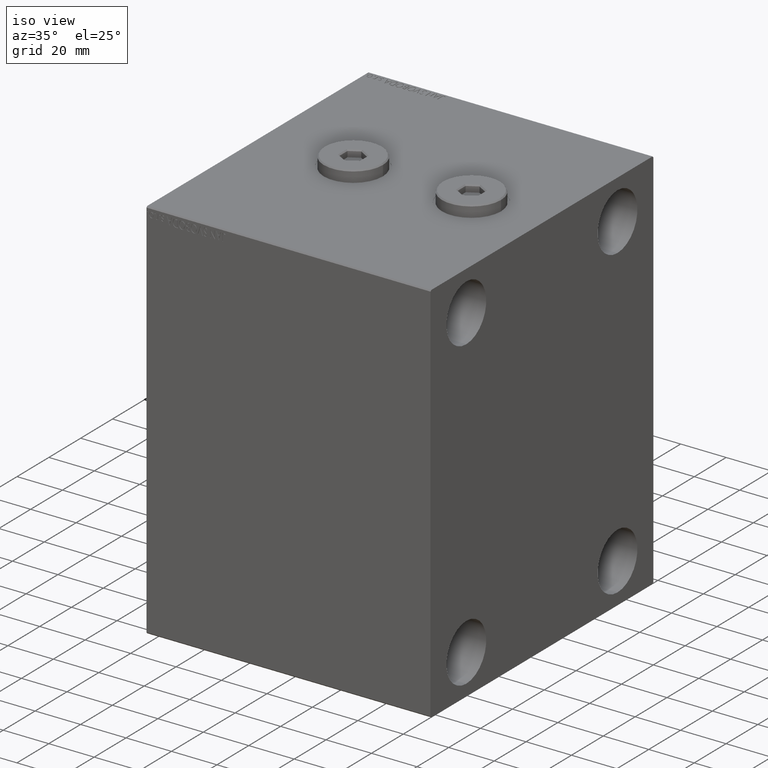
[diagram: clean part render]
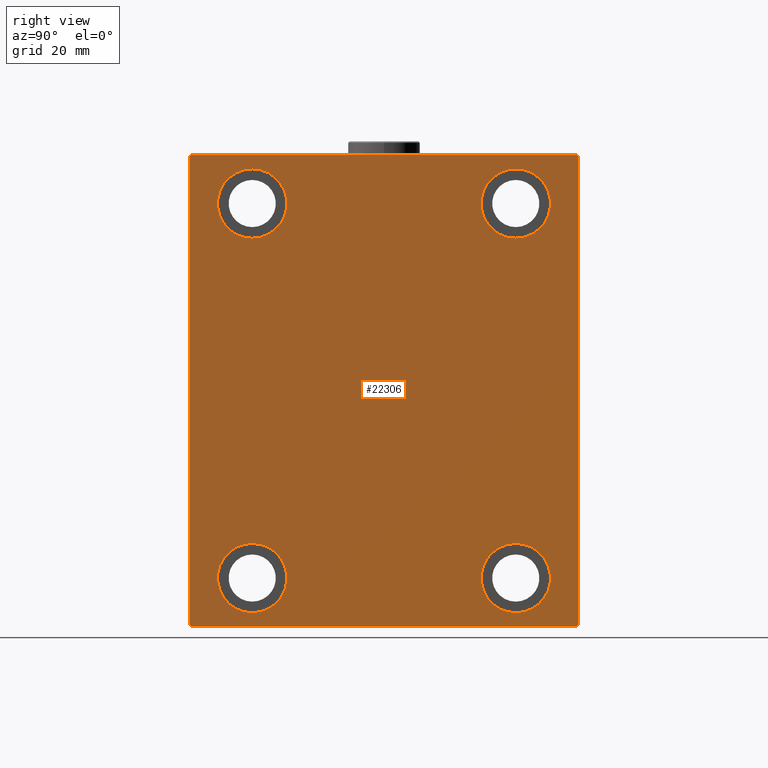
[diagram: tour spotlight — one face highlighted and labeled with its STEP entity id]
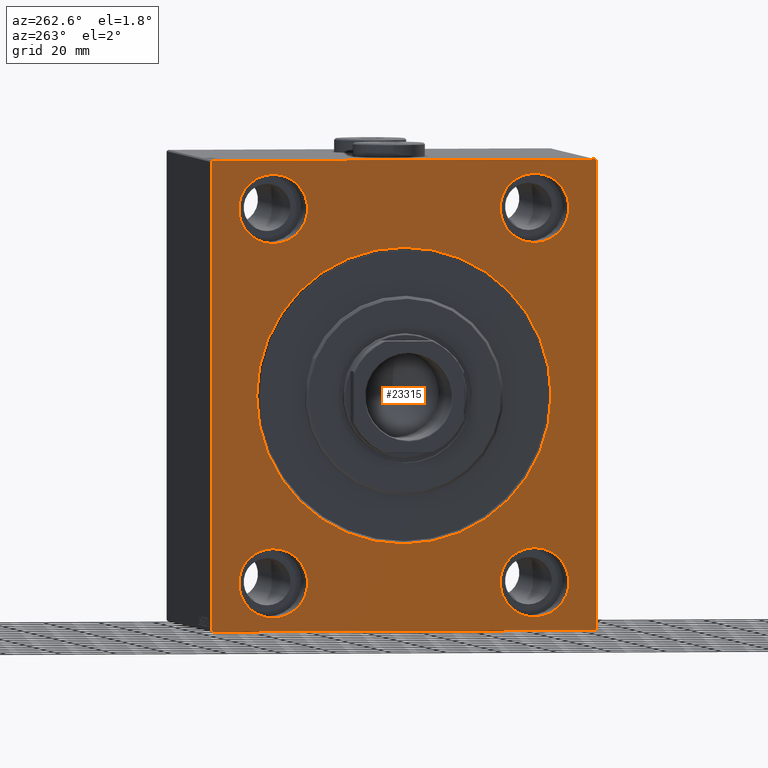
[diagram: tour spotlight — one face highlighted and labeled with its STEP entity id]
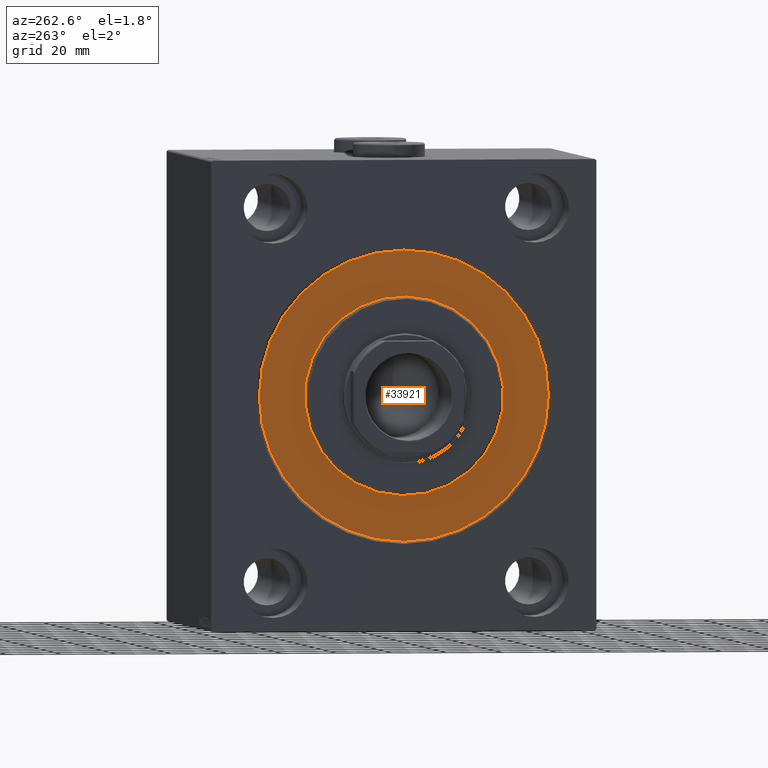
[diagram: tour spotlight — one face highlighted and labeled with its STEP entity id]
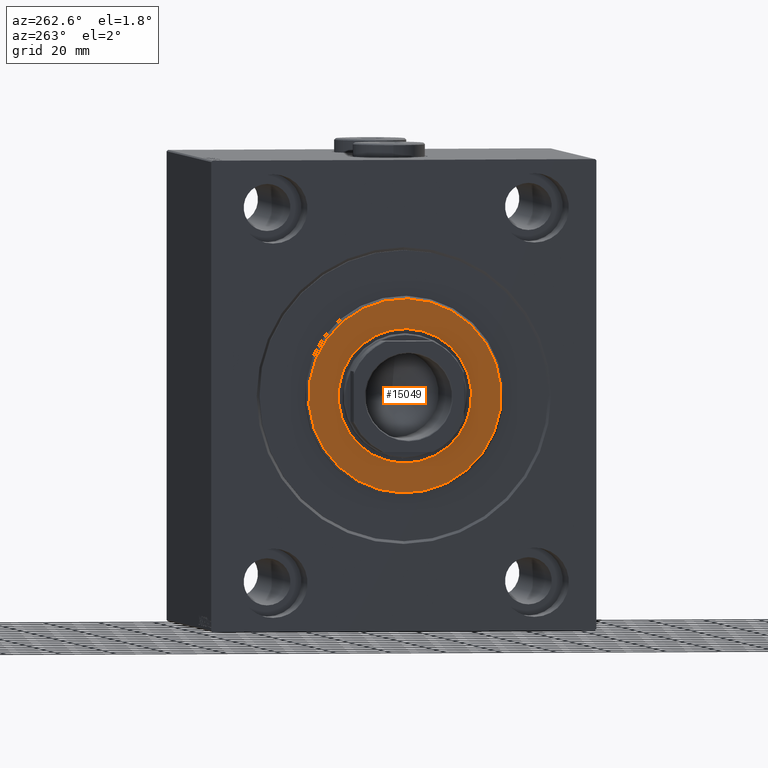
[diagram: tour spotlight — one face highlighted and labeled with its STEP entity id]
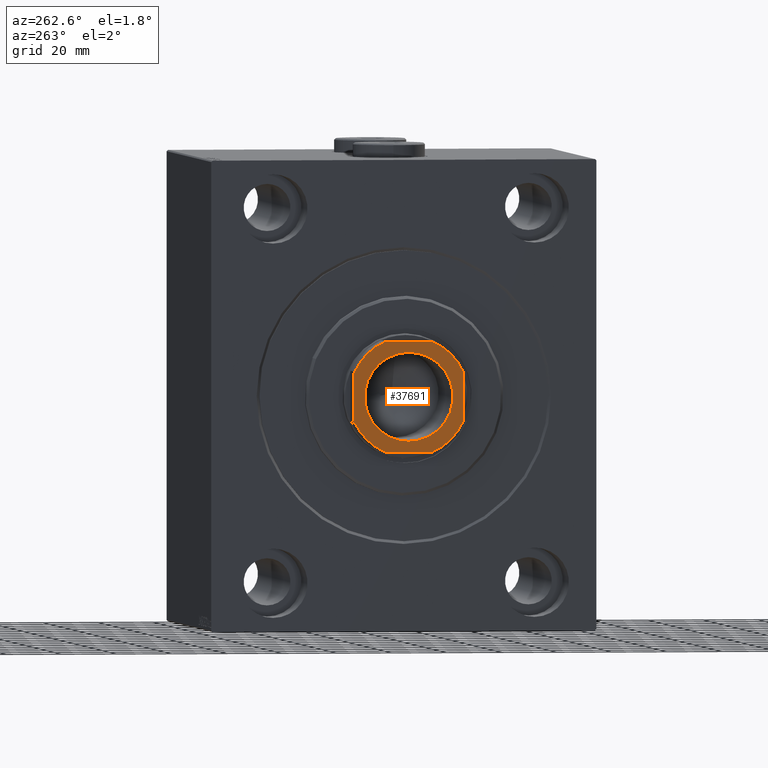
[diagram: tour spotlight — one face highlighted and labeled with its STEP entity id]
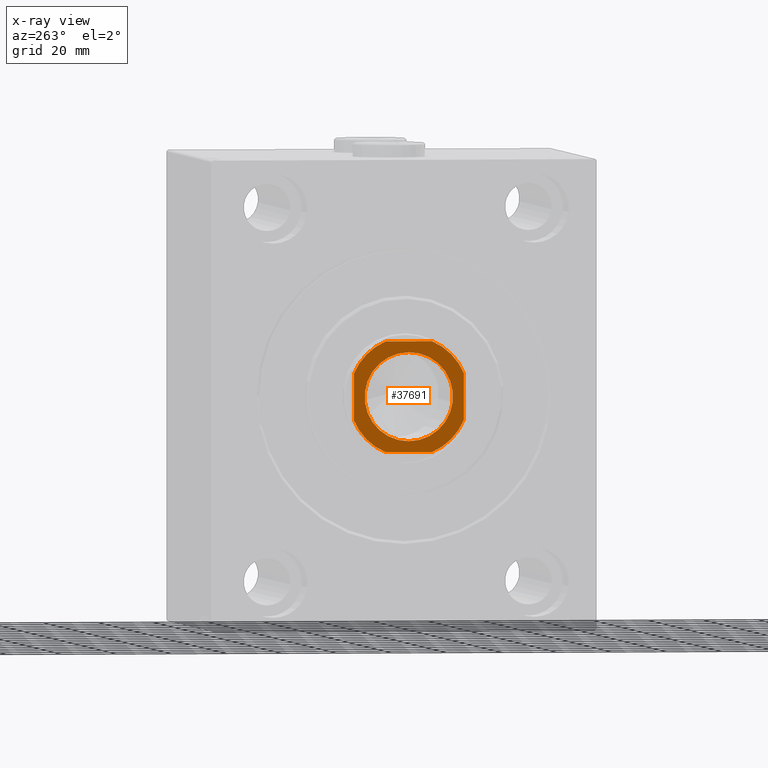
[diagram: x-ray of the same camera — body ghosted, this tour face saturated]
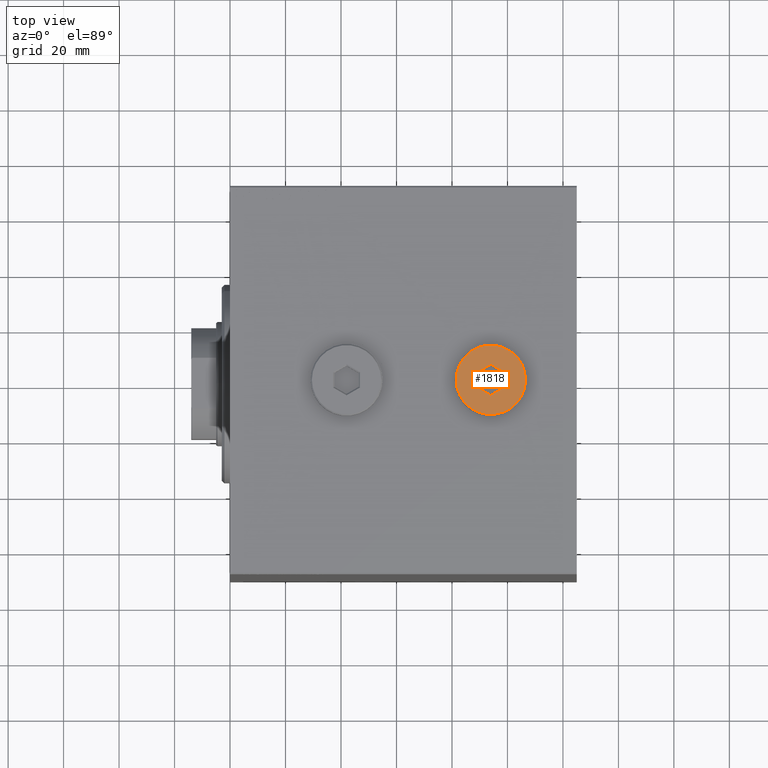
[diagram: tour spotlight — one face highlighted and labeled with its STEP entity id]
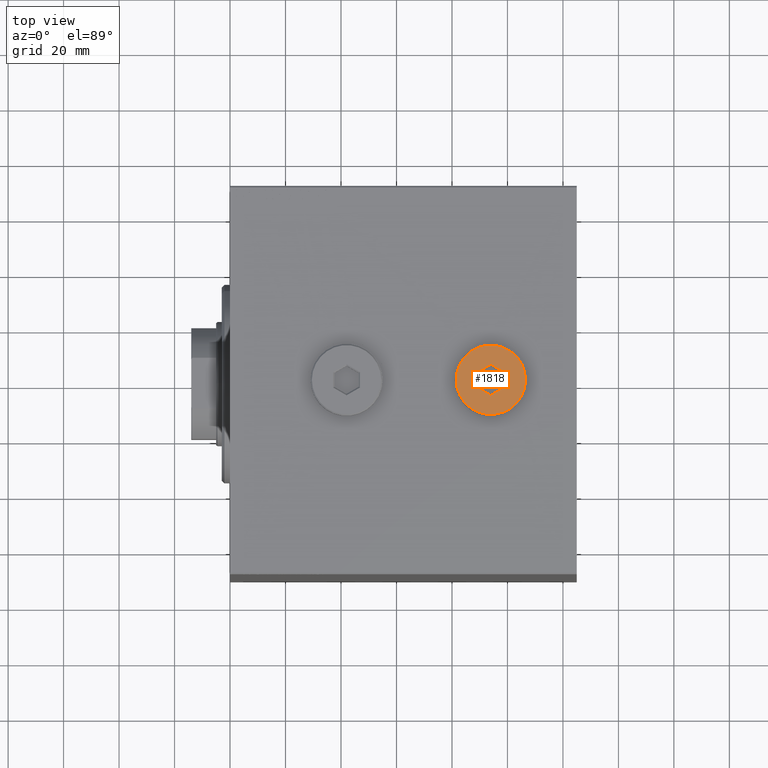
[diagram: tour spotlight — one face highlighted and labeled with its STEP entity id]
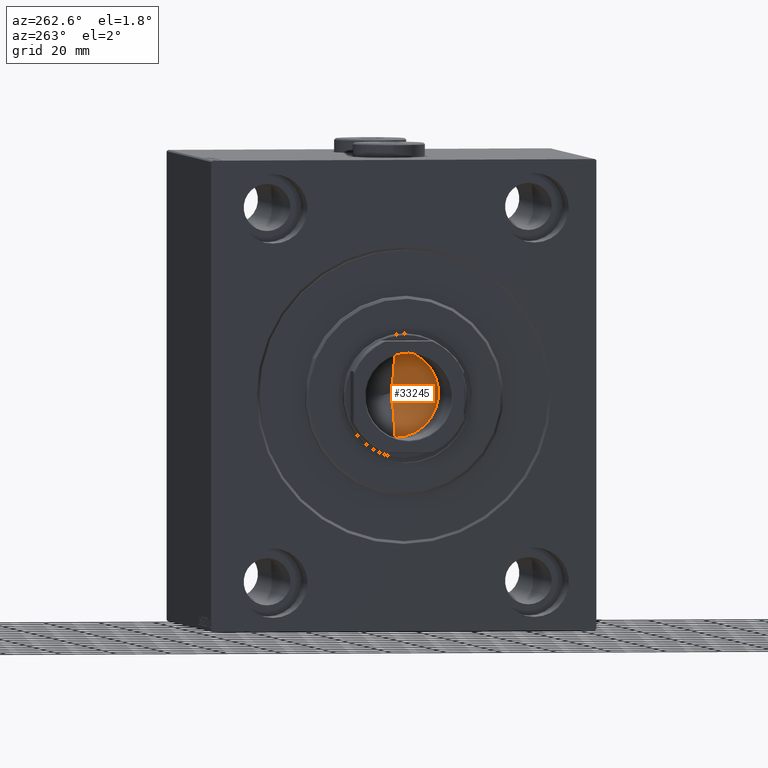
[diagram: tour spotlight — one face highlighted and labeled with its STEP entity id]
A machine part: a face-by-face anatomy tour. The part has 917 B-rep faces; the first image is the clean iso view, then the 8 largest visible faces are spotlighted one at a time (largest first), each with its STEP entity span.

Face 1 — right view, entity #22306. In plain terms, the highlighted planar face has unit normal (1, 0, 0).
Definition (entity closure, byte-faithful):
#208 = CARTESIAN_POINT ( 'NONE',  ( 125.0000000000000000, 47.50000000000000711, -67.50000000000000000 ) ) ;
#240 = CARTESIAN_POINT ( 'NONE',  ( 125.0000000000000000, -47.49999999999999289, -67.50000000000000000 ) ) ;
#627 = DIRECTION ( 'NONE',  ( 0.000000000000000000, 0.000000000000000000, 1.000000000000000000 ) ) ;
#775 = ORIENTED_EDGE ( 'NONE', *, *, #10256, .T. ) ;
#801 = CARTESIAN_POINT ( 'NONE',  ( 125.0000000000000000, -47.49999999999997868, 55.00000000000000000 ) ) ;
#1208 = DIRECTION ( 'NONE',  ( 0.000000000000000000, 0.000000000000000000, 1.000000000000000000 ) ) ;
#1876 = VERTEX_POINT ( 'NONE', #2485 ) ;
#2126 = AXIS2_PLACEMENT_3D ( 'NONE', #29036, #11937, #1208 ) ;
#2485 = CARTESIAN_POINT ( 'NONE',  ( 125.0000000000000000, -47.49999999999999289, -55.00000000000000711 ) ) ;
#3408 = VERTEX_POINT ( 'NONE', #36102 ) ;
#3709 = DIRECTION ( 'NONE',  ( 0.000000000000000000, -1.000000000000000000, -9.912705577010325549E-17 ) ) ;
#3798 = VECTOR ( 'NONE', #24924, 1000.000000000000000 ) ;
#4574 = FACE_OUTER_BOUND ( 'NONE', #31026, .T. ) ;
#4967 = ORIENTED_EDGE ( 'NONE', *, *, #12283, .T. ) ;
#5433 = CARTESIAN_POINT ( 'NONE',  ( 125.0000000000000000, 47.50000000000000711, 80.00000000000001421 ) ) ;
#5727 = VERTEX_POINT ( 'NONE', #21836 ) ;
#6416 = VECTOR ( 'NONE', #18000, 1000.000000000000000 ) ;
#6594 = LINE ( 'NONE', #23029, #38563 ) ;
#7360 = CIRCLE ( 'NONE', #27735, 12.49999999999999645 ) ;
#8004 = FACE_BOUND ( 'NONE', #23435, .T. ) ;
#8083 = DIRECTION ( 'NONE',  ( -1.000000000000000000, -0.000000000000000000, -0.000000000000000000 ) ) ;
#8097 = EDGE_CURVE ( 'NONE', #42112, #41736, #39394, .T. ) ;
#8326 = VECTOR ( 'NONE', #3709, 1000.000000000000000 ) ;
#8463 = EDGE_CURVE ( 'NONE', #1876, #33055, #7360, .T. ) ;
#8594 = EDGE_LOOP ( 'NONE', ( #4967, #13448 ) ) ;
#8704 = DIRECTION ( 'NONE',  ( 0.000000000000000000, 0.000000000000000000, 1.000000000000000000 ) ) ;
#8717 = EDGE_CURVE ( 'NONE', #30640, #43661, #27407, .T. ) ;
#9018 = CIRCLE ( 'NONE', #43270, 12.49999999999999645 ) ;
#9191 = ORIENTED_EDGE ( 'NONE', *, *, #8717, .T. ) ;
#9458 = CARTESIAN_POINT ( 'NONE',  ( 125.0000000000000000, 47.50000000000000711, -80.00000000000000000 ) ) ;
#9479 = ORIENTED_EDGE ( 'NONE', *, *, #9575, .T. ) ;
#9575 = EDGE_CURVE ( 'NONE', #33055, #1876, #42026, .T. ) ;
#10256 = EDGE_CURVE ( 'NONE', #20692, #11074, #16581, .T. ) ;
#10761 = AXIS2_PLACEMENT_3D ( 'NONE', #42142, #18190, #627 ) ;
#10988 = AXIS2_PLACEMENT_3D ( 'NONE', #20465, #41445, #23444 ) ;
#11074 = VERTEX_POINT ( 'NONE', #12721 ) ;
#11328 = ORIENTED_EDGE ( 'NONE', *, *, #8097, .T. ) ;
#11747 = DIRECTION ( 'NONE',  ( 0.000000000000000000, 0.000000000000000000, 1.000000000000000000 ) ) ;
#11937 = DIRECTION ( 'NONE',  ( -1.000000000000000000, -0.000000000000000000, -0.000000000000000000 ) ) ;
#12053 = CARTESIAN_POINT ( 'NONE',  ( 125.0000000000000000, -47.49999999999999289, -80.00000000000000000 ) ) ;
#12283 = EDGE_CURVE ( 'NONE', #42624, #22890, #41362, .T. ) ;
#12377 = CARTESIAN_POINT ( 'NONE',  ( 125.0000000000000000, -77.24999999999901945, -77.25000000000116529 ) ) ;
#12683 = AXIS2_PLACEMENT_3D ( 'NONE', #14869, #18531, #8704 ) ;
#12721 = CARTESIAN_POINT ( 'NONE',  ( 125.0000000000000000, 69.50000000000001421, -85.00000000000001421 ) ) ;
#13448 = ORIENTED_EDGE ( 'NONE', *, *, #35859, .T. ) ;
#13894 = DIRECTION ( 'NONE',  ( -1.000000000000000000, -0.000000000000000000, -0.000000000000000000 ) ) ;
#14071 = ORIENTED_EDGE ( 'NONE', *, *, #15757, .T. ) ;
#14139 = DIRECTION ( 'NONE',  ( 0.000000000000000000, 0.000000000000000000, 1.000000000000000000 ) ) ;
#14239 = CARTESIAN_POINT ( 'NONE',  ( 125.0000000000000000, -47.49999999999997868, 80.00000000000001421 ) ) ;
#14512 = ORIENTED_EDGE ( 'NONE', *, *, #43288, .T. ) ;
#14790 = CARTESIAN_POINT ( 'NONE',  ( 125.0000000000000000, 70.00000000000002842, -85.00000000000001421 ) ) ;
#14850 = FACE_BOUND ( 'NONE', #44554, .T. ) ;
#14869 = CARTESIAN_POINT ( 'NONE',  ( 125.0000000000000000, 47.50000000000000711, 67.50000000000000000 ) ) ;
#15072 = FACE_BOUND ( 'NONE', #8594, .T. ) ;
#15355 = VERTEX_POINT ( 'NONE', #9458 ) ;
#15757 = EDGE_CURVE ( 'NONE', #11074, #18298, #6594, .T. ) ;
#16406 = EDGE_CURVE ( 'NONE', #15355, #25277, #17437, .T. ) ;
#16581 = LINE ( 'NONE', #40973, #40581 ) ;
#17424 = ORIENTED_EDGE ( 'NONE', *, *, #19137, .T. ) ;
#17437 = CIRCLE ( 'NONE', #2126, 12.49999999999999645 ) ;
#17611 = PLANE ( 'NONE',  #20627 ) ;
#17658 = DIRECTION ( 'NONE',  ( -1.000000000000000000, -0.000000000000000000, -0.000000000000000000 ) ) ;
#17977 = CIRCLE ( 'NONE', #33265, 12.50000000000001066 ) ;
#18000 = DIRECTION ( 'NONE',  ( 0.000000000000000000, -8.163404592832031500E-17, 1.000000000000000000 ) ) ;
#18146 = CARTESIAN_POINT ( 'NONE',  ( 125.0000000000000000, -47.49999999999997868, 67.50000000000000000 ) ) ;
#18190 = DIRECTION ( 'NONE',  ( -1.000000000000000000, -0.000000000000000000, -0.000000000000000000 ) ) ;
#18298 = VERTEX_POINT ( 'NONE', #24028 ) ;
#18322 = DIRECTION ( 'NONE',  ( -0.000000000000000000, 0.7071067811865574537, -0.7071067811865376918 ) ) ;
#18531 = DIRECTION ( 'NONE',  ( -1.000000000000000000, -0.000000000000000000, -0.000000000000000000 ) ) ;
#19137 = EDGE_CURVE ( 'NONE', #5727, #3408, #41199, .T. ) ;
#20015 = ORIENTED_EDGE ( 'NONE', *, *, #25298, .T. ) ;
#20465 = CARTESIAN_POINT ( 'NONE',  ( 125.0000000000000000, 47.50000000000000711, 67.50000000000000000 ) ) ;
#20516 = DIRECTION ( 'NONE',  ( -0.000000000000000000, 0.7071067811865769936, 0.7071067811865181518 ) ) ;
#20627 = AXIS2_PLACEMENT_3D ( 'NONE', #28989, #42909, #28082 ) ;
#20692 = VERTEX_POINT ( 'NONE', #32817 ) ;
#20889 = VECTOR ( 'NONE', #23106, 1000.000000000000000 ) ;
#20974 = ORIENTED_EDGE ( 'NONE', *, *, #39547, .T. ) ;
#21836 = CARTESIAN_POINT ( 'NONE',  ( 125.0000000000000000, -69.99999999999998579, 84.49999999999995737 ) ) ;
#21983 = EDGE_LOOP ( 'NONE', ( #9479, #27965 ) ) ;
#22306 = ADVANCED_FACE ( 'NONE', ( #8004, #15072, #14850, #34946, #4574 ), #17611, .T. ) ;
#22890 = VERTEX_POINT ( 'NONE', #14239 ) ;
#23029 = CARTESIAN_POINT ( 'NONE',  ( 125.0000000000000000, 77.24999999999714362, -77.25000000000356692 ) ) ;
#23106 = DIRECTION ( 'NONE',  ( -0.000000000000000000, -0.7071067811865378028, 0.7071067811865573427 ) ) ;
#23435 = EDGE_LOOP ( 'NONE', ( #33192, #44506 ) ) ;
#23444 = DIRECTION ( 'NONE',  ( 0.000000000000000000, 0.000000000000000000, 1.000000000000000000 ) ) ;
#23753 = DIRECTION ( 'NONE',  ( -1.000000000000000000, -0.000000000000000000, -0.000000000000000000 ) ) ;
#24028 = CARTESIAN_POINT ( 'NONE',  ( 125.0000000000000000, 70.00000000000002842, -84.50000000000004263 ) ) ;
#24121 = EDGE_CURVE ( 'NONE', #41736, #42112, #40343, .T. ) ;
#24924 = DIRECTION ( 'NONE',  ( 0.000000000000000000, 0.000000000000000000, -1.000000000000000000 ) ) ;
#25277 = VERTEX_POINT ( 'NONE', #26549 ) ;
#25298 = EDGE_CURVE ( 'NONE', #43661, #30183, #34525, .T. ) ;
#26073 = VECTOR ( 'NONE', #28055, 1000.000000000000114 ) ;
#26549 = CARTESIAN_POINT ( 'NONE',  ( 125.0000000000000000, 47.50000000000000711, -55.00000000000000711 ) ) ;
#27386 = LINE ( 'NONE', #38108, #26073 ) ;
#27407 = LINE ( 'NONE', #41331, #20889 ) ;
#27706 = EDGE_CURVE ( 'NONE', #25277, #15355, #9018, .T. ) ;
#27735 = AXIS2_PLACEMENT_3D ( 'NONE', #31116, #17658, #38638 ) ;
#27965 = ORIENTED_EDGE ( 'NONE', *, *, #8463, .T. ) ;
#28055 = DIRECTION ( 'NONE',  ( 0.000000000000000000, -0.7071067811865474617, -0.7071067811865474617 ) ) ;
#28082 = DIRECTION ( 'NONE',  ( 0.000000000000000000, 0.000000000000000000, -1.000000000000000000 ) ) ;
#28110 = CARTESIAN_POINT ( 'NONE',  ( 125.0000000000000000, 70.00000000000001421, 85.00000000000000000 ) ) ;
#28989 = CARTESIAN_POINT ( 'NONE',  ( 125.0000000000000000, 0.000000000000000000, 0.000000000000000000 ) ) ;
#29036 = CARTESIAN_POINT ( 'NONE',  ( 125.0000000000000000, 47.50000000000000711, -67.50000000000000000 ) ) ;
#30183 = VERTEX_POINT ( 'NONE', #34537 ) ;
#30640 = VERTEX_POINT ( 'NONE', #40924 ) ;
#31015 = DIRECTION ( 'NONE',  ( 0.000000000000000000, 0.000000000000000000, 1.000000000000000000 ) ) ;
#31026 = EDGE_LOOP ( 'NONE', ( #20015, #14512, #17424, #32678, #775, #14071, #20974, #9191 ) ) ;
#31116 = CARTESIAN_POINT ( 'NONE',  ( 125.0000000000000000, -47.49999999999999289, -67.50000000000000000 ) ) ;
#31460 = LINE ( 'NONE', #14790, #6416 ) ;
#32678 = ORIENTED_EDGE ( 'NONE', *, *, #44071, .T. ) ;
#32817 = CARTESIAN_POINT ( 'NONE',  ( 125.0000000000000000, -69.49999999999994316, -85.00000000000002842 ) ) ;
#33055 = VERTEX_POINT ( 'NONE', #12053 ) ;
#33192 = ORIENTED_EDGE ( 'NONE', *, *, #16406, .T. ) ;
#33265 = AXIS2_PLACEMENT_3D ( 'NONE', #18146, #8083, #11747 ) ;
#33284 = AXIS2_PLACEMENT_3D ( 'NONE', #240, #23753, #14139 ) ;
#33549 = ORIENTED_EDGE ( 'NONE', *, *, #24121, .T. ) ;
#34525 = LINE ( 'NONE', #28110, #8326 ) ;
#34537 = CARTESIAN_POINT ( 'NONE',  ( 125.0000000000000000, -69.49999999999997158, 84.99999999999998579 ) ) ;
#34946 = FACE_BOUND ( 'NONE', #21983, .T. ) ;
#35585 = VECTOR ( 'NONE', #18322, 999.9999999999998863 ) ;
#35859 = EDGE_CURVE ( 'NONE', #22890, #42624, #17977, .T. ) ;
#36102 = CARTESIAN_POINT ( 'NONE',  ( 125.0000000000000000, -69.99999999999998579, -84.49999999999998579 ) ) ;
#38108 = CARTESIAN_POINT ( 'NONE',  ( 125.0000000000000000, -77.24999999999997158, 77.24999999999997158 ) ) ;
#38563 = VECTOR ( 'NONE', #20516, 1000.000000000000000 ) ;
#38638 = DIRECTION ( 'NONE',  ( 0.000000000000000000, 0.000000000000000000, 1.000000000000000000 ) ) ;
#39294 = LINE ( 'NONE', #12377, #35585 ) ;
#39343 = CARTESIAN_POINT ( 'NONE',  ( 125.0000000000000000, 69.49999999999998579, 85.00000000000000000 ) ) ;
#39394 = CIRCLE ( 'NONE', #10988, 12.50000000000001066 ) ;
#39547 = EDGE_CURVE ( 'NONE', #18298, #30640, #31460, .T. ) ;
#40343 = CIRCLE ( 'NONE', #12683, 12.50000000000001066 ) ;
#40581 = VECTOR ( 'NONE', #44861, 1000.000000000000000 ) ;
#40924 = CARTESIAN_POINT ( 'NONE',  ( 125.0000000000000000, 70.00000000000001421, 84.49999999999995737 ) ) ;
#40973 = CARTESIAN_POINT ( 'NONE',  ( 125.0000000000000000, -69.99999999999998579, -85.00000000000002842 ) ) ;
#41199 = LINE ( 'NONE', #42275, #3798 ) ;
#41331 = CARTESIAN_POINT ( 'NONE',  ( 125.0000000000000000, 77.25000000000096634, 77.24999999999883471 ) ) ;
#41362 = CIRCLE ( 'NONE', #10761, 12.50000000000001066 ) ;
#41445 = DIRECTION ( 'NONE',  ( -1.000000000000000000, -0.000000000000000000, -0.000000000000000000 ) ) ;
#41736 = VERTEX_POINT ( 'NONE', #43934 ) ;
#42026 = CIRCLE ( 'NONE', #33284, 12.49999999999999645 ) ;
#42112 = VERTEX_POINT ( 'NONE', #5433 ) ;
#42142 = CARTESIAN_POINT ( 'NONE',  ( 125.0000000000000000, -47.49999999999997868, 67.50000000000000000 ) ) ;
#42275 = CARTESIAN_POINT ( 'NONE',  ( 125.0000000000000000, -69.99999999999998579, 84.99999999999998579 ) ) ;
#42624 = VERTEX_POINT ( 'NONE', #801 ) ;
#42909 = DIRECTION ( 'NONE',  ( 1.000000000000000000, 0.000000000000000000, 0.000000000000000000 ) ) ;
#43270 = AXIS2_PLACEMENT_3D ( 'NONE', #208, #13894, #31015 ) ;
#43288 = EDGE_CURVE ( 'NONE', #30183, #5727, #27386, .T. ) ;
#43661 = VERTEX_POINT ( 'NONE', #39343 ) ;
#43934 = CARTESIAN_POINT ( 'NONE',  ( 125.0000000000000000, 47.50000000000000711, 55.00000000000000000 ) ) ;
#44071 = EDGE_CURVE ( 'NONE', #3408, #20692, #39294, .T. ) ;
#44506 = ORIENTED_EDGE ( 'NONE', *, *, #27706, .T. ) ;
#44554 = EDGE_LOOP ( 'NONE', ( #33549, #11328 ) ) ;
#44861 = DIRECTION ( 'NONE',  ( 0.000000000000000000, 1.000000000000000000, 9.912705577010325549E-17 ) ) ;

Face 2 — auxiliary view, entity #23315. In plain terms, the highlighted planar face has unit normal (1, 0, 0).
Definition (entity closure, byte-faithful):
#407 = CARTESIAN_POINT ( 'NONE',  ( 0.000000000000000000, 70.00000000000002842, -84.50000000000004263 ) ) ;
#431 = DIRECTION ( 'NONE',  ( 0.000000000000000000, 1.000000000000000000, 9.912705577010325549E-17 ) ) ;
#767 = ORIENTED_EDGE ( 'NONE', *, *, #40827, .F. ) ;
#1133 = EDGE_LOOP ( 'NONE', ( #27169, #16231 ) ) ;
#1188 = DIRECTION ( 'NONE',  ( 0.000000000000000000, -0.7071067811865769936, -0.7071067811865181518 ) ) ;
#1916 = EDGE_CURVE ( 'NONE', #16418, #33824, #10953, .T. ) ;
#1952 = CARTESIAN_POINT ( 'NONE',  ( 0.000000000000000000, 0.000000000000000000, 0.000000000000000000 ) ) ;
#1971 = EDGE_CURVE ( 'NONE', #36311, #4165, #16038, .T. ) ;
#2004 = VERTEX_POINT ( 'NONE', #407 ) ;
#2674 = ORIENTED_EDGE ( 'NONE', *, *, #23047, .F. ) ;
#2853 = CARTESIAN_POINT ( 'NONE',  ( 0.000000000000000000, -47.49999999999999289, -80.00000000000000000 ) ) ;
#2854 = AXIS2_PLACEMENT_3D ( 'NONE', #32087, #38915, #18168 ) ;
#3245 = AXIS2_PLACEMENT_3D ( 'NONE', #19914, #44765, #37252 ) ;
#3967 = CARTESIAN_POINT ( 'NONE',  ( 0.000000000000000000, 47.50000000000000711, 67.50000000000000000 ) ) ;
#4089 = EDGE_LOOP ( 'NONE', ( #34548, #5238 ) ) ;
#4165 = VERTEX_POINT ( 'NONE', #14856 ) ;
#4223 = CARTESIAN_POINT ( 'NONE',  ( 0.000000000000000000, 6.551860375438343048E-15, -53.50000000000002842 ) ) ;
#4272 = AXIS2_PLACEMENT_3D ( 'NONE', #13022, #40829, #13453 ) ;
#4753 = CARTESIAN_POINT ( 'NONE',  ( 0.000000000000000000, 47.50000000000000711, 80.00000000000001421 ) ) ;
#4844 = EDGE_CURVE ( 'NONE', #25009, #16093, #40902, .T. ) ;
#5238 = ORIENTED_EDGE ( 'NONE', *, *, #16775, .F. ) ;
#5587 = VERTEX_POINT ( 'NONE', #4753 ) ;
#6445 = ORIENTED_EDGE ( 'NONE', *, *, #29777, .T. ) ;
#6558 = CARTESIAN_POINT ( 'NONE',  ( 0.000000000000000000, 70.00000000000001421, 85.00000000000000000 ) ) ;
#6635 = CARTESIAN_POINT ( 'NONE',  ( 0.000000000000000000, -47.49999999999999289, -55.00000000000000711 ) ) ;
#6673 = FACE_BOUND ( 'NONE', #40424, .T. ) ;
#6944 = DIRECTION ( 'NONE',  ( 0.000000000000000000, 0.000000000000000000, 1.000000000000000000 ) ) ;
#7488 = DIRECTION ( 'NONE',  ( 0.000000000000000000, 0.000000000000000000, -1.000000000000000000 ) ) ;
#7629 = DIRECTION ( 'NONE',  ( 0.000000000000000000, -8.163404592832031500E-17, 1.000000000000000000 ) ) ;
#7667 = VERTEX_POINT ( 'NONE', #8430 ) ;
#7899 = VECTOR ( 'NONE', #40787, 1000.000000000000000 ) ;
#7943 = EDGE_CURVE ( 'NONE', #43647, #37145, #24821, .T. ) ;
#8430 = CARTESIAN_POINT ( 'NONE',  ( 0.000000000000000000, 47.50000000000000711, 55.00000000000000000 ) ) ;
#8490 = CARTESIAN_POINT ( 'NONE',  ( 0.000000000000000000, 47.50000000000000711, -55.00000000000000711 ) ) ;
#8575 = CARTESIAN_POINT ( 'NONE',  ( 0.000000000000000000, 69.49999999999998579, 85.00000000000000000 ) ) ;
#8857 = AXIS2_PLACEMENT_3D ( 'NONE', #1952, #12469, #16106 ) ;
#9022 = AXIS2_PLACEMENT_3D ( 'NONE', #14643, #17853, #31765 ) ;
#9313 = LINE ( 'NONE', #34394, #44330 ) ;
#10203 = AXIS2_PLACEMENT_3D ( 'NONE', #41026, #40347, #23701 ) ;
#10480 = VECTOR ( 'NONE', #1188, 1000.000000000000000 ) ;
#10953 = CIRCLE ( 'NONE', #10203, 12.49999999999999645 ) ;
#11066 = LINE ( 'NONE', #34789, #38854 ) ;
#11489 = ORIENTED_EDGE ( 'NONE', *, *, #40851, .T. ) ;
#11589 = VERTEX_POINT ( 'NONE', #35433 ) ;
#11996 = ORIENTED_EDGE ( 'NONE', *, *, #4844, .T. ) ;
#12218 = VERTEX_POINT ( 'NONE', #20494 ) ;
#12469 = DIRECTION ( 'NONE',  ( 1.000000000000000000, 0.000000000000000000, 0.000000000000000000 ) ) ;
#13022 = CARTESIAN_POINT ( 'NONE',  ( 0.000000000000000000, -47.49999999999999289, -67.50000000000000000 ) ) ;
#13151 = AXIS2_PLACEMENT_3D ( 'NONE', #13646, #21615, #17972 ) ;
#13453 = DIRECTION ( 'NONE',  ( 0.000000000000000000, 0.000000000000000000, 1.000000000000000000 ) ) ;
#13551 = CARTESIAN_POINT ( 'NONE',  ( 0.000000000000000000, -47.49999999999997868, 80.00000000000001421 ) ) ;
#13646 = CARTESIAN_POINT ( 'NONE',  ( 0.000000000000000000, -47.49999999999997868, 67.50000000000000000 ) ) ;
#13673 = LINE ( 'NONE', #34220, #22860 ) ;
#14379 = AXIS2_PLACEMENT_3D ( 'NONE', #25716, #36446, #18888 ) ;
#14623 = VECTOR ( 'NONE', #7488, 1000.000000000000000 ) ;
#14643 = CARTESIAN_POINT ( 'NONE',  ( 0.000000000000000000, 0.000000000000000000, 0.000000000000000000 ) ) ;
#14856 = CARTESIAN_POINT ( 'NONE',  ( 0.000000000000000000, -47.49999999999997868, 55.00000000000000000 ) ) ;
#15314 = PLANE ( 'NONE',  #9022 ) ;
#15753 = ORIENTED_EDGE ( 'NONE', *, *, #21657, .T. ) ;
#16038 = CIRCLE ( 'NONE', #13151, 12.50000000000001066 ) ;
#16093 = VERTEX_POINT ( 'NONE', #4223 ) ;
#16106 = DIRECTION ( 'NONE',  ( 0.000000000000000000, 0.000000000000000000, -1.000000000000000000 ) ) ;
#16231 = ORIENTED_EDGE ( 'NONE', *, *, #39773, .F. ) ;
#16262 = VECTOR ( 'NONE', #40336, 1000.000000000000000 ) ;
#16418 = VERTEX_POINT ( 'NONE', #8490 ) ;
#16775 = EDGE_CURVE ( 'NONE', #33824, #16418, #22512, .T. ) ;
#17853 = DIRECTION ( 'NONE',  ( 1.000000000000000000, 0.000000000000000000, 0.000000000000000000 ) ) ;
#17972 = DIRECTION ( 'NONE',  ( 0.000000000000000000, 0.000000000000000000, 1.000000000000000000 ) ) ;
#17986 = LINE ( 'NONE', #28684, #27278 ) ;
#18036 = ORIENTED_EDGE ( 'NONE', *, *, #28281, .T. ) ;
#18168 = DIRECTION ( 'NONE',  ( 0.000000000000000000, 0.000000000000000000, 1.000000000000000000 ) ) ;
#18661 = CARTESIAN_POINT ( 'NONE',  ( 0.000000000000000000, 70.00000000000001421, 84.49999999999995737 ) ) ;
#18888 = DIRECTION ( 'NONE',  ( 0.000000000000000000, 0.000000000000000000, -1.000000000000000000 ) ) ;
#19276 = CARTESIAN_POINT ( 'NONE',  ( 0.000000000000000000, -69.99999999999998579, 84.49999999999995737 ) ) ;
#19914 = CARTESIAN_POINT ( 'NONE',  ( 0.000000000000000000, 47.50000000000000711, 67.50000000000000000 ) ) ;
#20007 = CARTESIAN_POINT ( 'NONE',  ( 0.000000000000000000, 0.000000000000000000, 53.50000000000002842 ) ) ;
#20037 = CARTESIAN_POINT ( 'NONE',  ( 0.000000000000000000, -47.49999999999997868, 67.50000000000000000 ) ) ;
#20494 = CARTESIAN_POINT ( 'NONE',  ( 0.000000000000000000, -69.49999999999994316, -85.00000000000002842 ) ) ;
#20668 = CARTESIAN_POINT ( 'NONE',  ( 0.000000000000000000, -47.49999999999999289, -67.50000000000000000 ) ) ;
#21615 = DIRECTION ( 'NONE',  ( -1.000000000000000000, 0.000000000000000000, 0.000000000000000000 ) ) ;
#21657 = EDGE_CURVE ( 'NONE', #41570, #26832, #43528, .T. ) ;
#21855 = DIRECTION ( 'NONE',  ( -0.000000000000000000, -0.7071067811865574537, 0.7071067811865376918 ) ) ;
#22159 = EDGE_CURVE ( 'NONE', #2004, #26832, #11066, .T. ) ;
#22512 = CIRCLE ( 'NONE', #2854, 12.49999999999999645 ) ;
#22860 = VECTOR ( 'NONE', #431, 1000.000000000000000 ) ;
#23047 = EDGE_CURVE ( 'NONE', #7667, #5587, #35236, .T. ) ;
#23223 = CIRCLE ( 'NONE', #4272, 12.49999999999999645 ) ;
#23315 = ADVANCED_FACE ( 'NONE', ( #41350, #24020, #37929, #6673, #31083, #45013 ), #15314, .F. ) ;
#23684 = DIRECTION ( 'NONE',  ( -0.000000000000000000, 0.7071067811865474617, 0.7071067811865474617 ) ) ;
#23701 = DIRECTION ( 'NONE',  ( 0.000000000000000000, 0.000000000000000000, 1.000000000000000000 ) ) ;
#23870 = CIRCLE ( 'NONE', #14379, 53.50000000000002842 ) ;
#23901 = DIRECTION ( 'NONE',  ( -1.000000000000000000, 0.000000000000000000, 0.000000000000000000 ) ) ;
#24020 = FACE_BOUND ( 'NONE', #4089, .T. ) ;
#24527 = DIRECTION ( 'NONE',  ( 0.000000000000000000, 0.000000000000000000, 1.000000000000000000 ) ) ;
#24795 = ORIENTED_EDGE ( 'NONE', *, *, #7943, .F. ) ;
#24821 = LINE ( 'NONE', #38746, #14623 ) ;
#25009 = VERTEX_POINT ( 'NONE', #20007 ) ;
#25716 = CARTESIAN_POINT ( 'NONE',  ( 0.000000000000000000, 0.000000000000000000, 0.000000000000000000 ) ) ;
#25809 = ORIENTED_EDGE ( 'NONE', *, *, #45151, .F. ) ;
#25987 = EDGE_LOOP ( 'NONE', ( #42337, #25809 ) ) ;
#26029 = EDGE_LOOP ( 'NONE', ( #11996, #40865 ) ) ;
#26832 = VERTEX_POINT ( 'NONE', #18661 ) ;
#27062 = VERTEX_POINT ( 'NONE', #33242 ) ;
#27169 = ORIENTED_EDGE ( 'NONE', *, *, #1971, .F. ) ;
#27278 = VECTOR ( 'NONE', #21855, 999.9999999999998863 ) ;
#27528 = CIRCLE ( 'NONE', #33371, 12.50000000000001066 ) ;
#27704 = EDGE_CURVE ( 'NONE', #12218, #27062, #13673, .T. ) ;
#28281 = EDGE_CURVE ( 'NONE', #2004, #27062, #32230, .T. ) ;
#28372 = VERTEX_POINT ( 'NONE', #6635 ) ;
#28684 = CARTESIAN_POINT ( 'NONE',  ( 0.000000000000000000, -69.49999999999994316, -85.00000000000002842 ) ) ;
#29046 = CARTESIAN_POINT ( 'NONE',  ( 0.000000000000000000, -69.99999999999998579, -84.49999999999998579 ) ) ;
#29777 = EDGE_CURVE ( 'NONE', #12218, #37145, #17986, .T. ) ;
#30300 = LINE ( 'NONE', #6558, #7899 ) ;
#30313 = EDGE_CURVE ( 'NONE', #5587, #7667, #40406, .T. ) ;
#30937 = DIRECTION ( 'NONE',  ( -1.000000000000000000, 0.000000000000000000, 0.000000000000000000 ) ) ;
#31083 = FACE_BOUND ( 'NONE', #25987, .T. ) ;
#31588 = AXIS2_PLACEMENT_3D ( 'NONE', #3967, #31818, #6944 ) ;
#31765 = DIRECTION ( 'NONE',  ( 0.000000000000000000, 0.000000000000000000, -1.000000000000000000 ) ) ;
#31818 = DIRECTION ( 'NONE',  ( -1.000000000000000000, 0.000000000000000000, 0.000000000000000000 ) ) ;
#32007 = CARTESIAN_POINT ( 'NONE',  ( 0.000000000000000000, 70.00000000000002842, -84.50000000000004263 ) ) ;
#32087 = CARTESIAN_POINT ( 'NONE',  ( 0.000000000000000000, 47.50000000000000711, -67.50000000000000000 ) ) ;
#32230 = LINE ( 'NONE', #32007, #10480 ) ;
#33242 = CARTESIAN_POINT ( 'NONE',  ( 0.000000000000000000, 69.50000000000001421, -85.00000000000001421 ) ) ;
#33371 = AXIS2_PLACEMENT_3D ( 'NONE', #20037, #23901, #44205 ) ;
#33824 = VERTEX_POINT ( 'NONE', #45125 ) ;
#34220 = CARTESIAN_POINT ( 'NONE',  ( 0.000000000000000000, -69.99999999999998579, -85.00000000000002842 ) ) ;
#34394 = CARTESIAN_POINT ( 'NONE',  ( 0.000000000000000000, -69.99999999999998579, 84.49999999999995737 ) ) ;
#34548 = ORIENTED_EDGE ( 'NONE', *, *, #1916, .F. ) ;
#34789 = CARTESIAN_POINT ( 'NONE',  ( 0.000000000000000000, 70.00000000000002842, -85.00000000000001421 ) ) ;
#35000 = ORIENTED_EDGE ( 'NONE', *, *, #30313, .F. ) ;
#35236 = CIRCLE ( 'NONE', #31588, 12.50000000000001066 ) ;
#35433 = CARTESIAN_POINT ( 'NONE',  ( 0.000000000000000000, -69.49999999999997158, 84.99999999999998579 ) ) ;
#35457 = CIRCLE ( 'NONE', #36175, 12.49999999999999645 ) ;
#35759 = EDGE_CURVE ( 'NONE', #28372, #37050, #35457, .T. ) ;
#36175 = AXIS2_PLACEMENT_3D ( 'NONE', #20668, #30937, #24527 ) ;
#36311 = VERTEX_POINT ( 'NONE', #13551 ) ;
#36446 = DIRECTION ( 'NONE',  ( 1.000000000000000000, 0.000000000000000000, 0.000000000000000000 ) ) ;
#36869 = EDGE_LOOP ( 'NONE', ( #24795, #11489, #767, #15753, #40847, #18036, #39254, #6445 ) ) ;
#37050 = VERTEX_POINT ( 'NONE', #2853 ) ;
#37145 = VERTEX_POINT ( 'NONE', #29046 ) ;
#37252 = DIRECTION ( 'NONE',  ( 0.000000000000000000, 0.000000000000000000, 1.000000000000000000 ) ) ;
#37929 = FACE_BOUND ( 'NONE', #1133, .T. ) ;
#38433 = EDGE_CURVE ( 'NONE', #16093, #25009, #23870, .T. ) ;
#38746 = CARTESIAN_POINT ( 'NONE',  ( 0.000000000000000000, -69.99999999999998579, 84.99999999999998579 ) ) ;
#38854 = VECTOR ( 'NONE', #7629, 1000.000000000000000 ) ;
#38915 = DIRECTION ( 'NONE',  ( -1.000000000000000000, 0.000000000000000000, 0.000000000000000000 ) ) ;
#39254 = ORIENTED_EDGE ( 'NONE', *, *, #27704, .F. ) ;
#39656 = CARTESIAN_POINT ( 'NONE',  ( 0.000000000000000000, 69.49999999999998579, 85.00000000000000000 ) ) ;
#39773 = EDGE_CURVE ( 'NONE', #4165, #36311, #27528, .T. ) ;
#40336 = DIRECTION ( 'NONE',  ( -0.000000000000000000, 0.7071067811865378028, -0.7071067811865573427 ) ) ;
#40347 = DIRECTION ( 'NONE',  ( -1.000000000000000000, 0.000000000000000000, 0.000000000000000000 ) ) ;
#40406 = CIRCLE ( 'NONE', #3245, 12.50000000000001066 ) ;
#40424 = EDGE_LOOP ( 'NONE', ( #35000, #2674 ) ) ;
#40787 = DIRECTION ( 'NONE',  ( 0.000000000000000000, -1.000000000000000000, -9.912705577010325549E-17 ) ) ;
#40827 = EDGE_CURVE ( 'NONE', #41570, #11589, #30300, .T. ) ;
#40829 = DIRECTION ( 'NONE',  ( -1.000000000000000000, 0.000000000000000000, 0.000000000000000000 ) ) ;
#40847 = ORIENTED_EDGE ( 'NONE', *, *, #22159, .F. ) ;
#40851 = EDGE_CURVE ( 'NONE', #43647, #11589, #9313, .T. ) ;
#40865 = ORIENTED_EDGE ( 'NONE', *, *, #38433, .T. ) ;
#40902 = CIRCLE ( 'NONE', #8857, 53.50000000000002842 ) ;
#41026 = CARTESIAN_POINT ( 'NONE',  ( 0.000000000000000000, 47.50000000000000711, -67.50000000000000000 ) ) ;
#41350 = FACE_BOUND ( 'NONE', #26029, .T. ) ;
#41570 = VERTEX_POINT ( 'NONE', #8575 ) ;
#42337 = ORIENTED_EDGE ( 'NONE', *, *, #35759, .F. ) ;
#43528 = LINE ( 'NONE', #39656, #16262 ) ;
#43647 = VERTEX_POINT ( 'NONE', #19276 ) ;
#44205 = DIRECTION ( 'NONE',  ( 0.000000000000000000, 0.000000000000000000, 1.000000000000000000 ) ) ;
#44330 = VECTOR ( 'NONE', #23684, 1000.000000000000114 ) ;
#44765 = DIRECTION ( 'NONE',  ( -1.000000000000000000, 0.000000000000000000, 0.000000000000000000 ) ) ;
#45013 = FACE_OUTER_BOUND ( 'NONE', #36869, .T. ) ;
#45125 = CARTESIAN_POINT ( 'NONE',  ( 0.000000000000000000, 47.50000000000000711, -80.00000000000000000 ) ) ;
#45151 = EDGE_CURVE ( 'NONE', #37050, #28372, #23223, .T. ) ;

Face 3 — auxiliary view, entity #33921. In plain terms, the highlighted planar face has unit normal (1, 0, -0).
Definition (entity closure, byte-faithful):
#111 = VERTEX_POINT ( 'NONE', #18456 ) ;
#688 = ORIENTED_EDGE ( 'NONE', *, *, #38377, .F. ) ;
#749 = EDGE_LOOP ( 'NONE', ( #688, #28019 ) ) ;
#1067 = DIRECTION ( 'NONE',  ( 0.000000000000000000, 0.000000000000000000, 1.000000000000000000 ) ) ;
#1538 = DIRECTION ( 'NONE',  ( -1.000000000000000000, 0.000000000000000000, 0.000000000000000000 ) ) ;
#6948 = CARTESIAN_POINT ( 'NONE',  ( 0.000000000000000000, 0.000000000000000000, -52.49999999999999289 ) ) ;
#8342 = DIRECTION ( 'NONE',  ( -1.000000000000000000, 0.000000000000000000, 0.000000000000000000 ) ) ;
#8938 = EDGE_CURVE ( 'NONE', #111, #22090, #28878, .T. ) ;
#9654 = EDGE_CURVE ( 'NONE', #21995, #23853, #36946, .T. ) ;
#10343 = EDGE_LOOP ( 'NONE', ( #17314, #23170 ) ) ;
#10623 = CARTESIAN_POINT ( 'NONE',  ( 0.000000000000000000, 0.000000000000000000, 0.000000000000000000 ) ) ;
#11086 = DIRECTION ( 'NONE',  ( 1.000000000000000000, -0.000000000000000000, 0.000000000000000000 ) ) ;
#12040 = CARTESIAN_POINT ( 'NONE',  ( 0.000000000000000000, 0.000000000000000000, 0.000000000000000000 ) ) ;
#17314 = ORIENTED_EDGE ( 'NONE', *, *, #9654, .F. ) ;
#18215 = DIRECTION ( 'NONE',  ( 0.000000000000000000, 0.000000000000000000, 1.000000000000000000 ) ) ;
#18456 = CARTESIAN_POINT ( 'NONE',  ( 0.000000000000000000, 6.429395695523603167E-15, 52.49999999999999289 ) ) ;
#18479 = CARTESIAN_POINT ( 'NONE',  ( 0.000000000000000000, 0.000000000000000000, 0.000000000000000000 ) ) ;
#19423 = AXIS2_PLACEMENT_3D ( 'NONE', #25112, #42679, #37147 ) ;
#20758 = AXIS2_PLACEMENT_3D ( 'NONE', #10623, #11086, #38902 ) ;
#21995 = VERTEX_POINT ( 'NONE', #26368 ) ;
#22090 = VERTEX_POINT ( 'NONE', #6948 ) ;
#22271 = PLANE ( 'NONE',  #23021 ) ;
#23021 = AXIS2_PLACEMENT_3D ( 'NONE', #43027, #8342, #1067 ) ;
#23157 = CIRCLE ( 'NONE', #26761, 52.49999999999999289 ) ;
#23170 = ORIENTED_EDGE ( 'NONE', *, *, #25907, .F. ) ;
#23824 = AXIS2_PLACEMENT_3D ( 'NONE', #18479, #35807, #28507 ) ;
#23853 = VERTEX_POINT ( 'NONE', #26151 ) ;
#25112 = CARTESIAN_POINT ( 'NONE',  ( 0.000000000000000000, 0.000000000000000000, 0.000000000000000000 ) ) ;
#25907 = EDGE_CURVE ( 'NONE', #23853, #21995, #27284, .T. ) ;
#26151 = CARTESIAN_POINT ( 'NONE',  ( 0.000000000000000000, 4.408728476930470856E-15, -36.00000000000000000 ) ) ;
#26368 = CARTESIAN_POINT ( 'NONE',  ( 0.000000000000000000, 0.000000000000000000, 36.00000000000000000 ) ) ;
#26761 = AXIS2_PLACEMENT_3D ( 'NONE', #12040, #1538, #18215 ) ;
#27284 = CIRCLE ( 'NONE', #20758, 36.00000000000000000 ) ;
#28019 = ORIENTED_EDGE ( 'NONE', *, *, #8938, .F. ) ;
#28204 = FACE_BOUND ( 'NONE', #10343, .T. ) ;
#28507 = DIRECTION ( 'NONE',  ( 0.000000000000000000, 0.000000000000000000, -1.000000000000000000 ) ) ;
#28878 = CIRCLE ( 'NONE', #19423, 52.49999999999999289 ) ;
#29113 = FACE_OUTER_BOUND ( 'NONE', #749, .T. ) ;
#33921 = ADVANCED_FACE ( 'NONE', ( #28204, #29113 ), #22271, .F. ) ;
#35807 = DIRECTION ( 'NONE',  ( 1.000000000000000000, -0.000000000000000000, 0.000000000000000000 ) ) ;
#36946 = CIRCLE ( 'NONE', #23824, 36.00000000000000000 ) ;
#37147 = DIRECTION ( 'NONE',  ( 0.000000000000000000, 0.000000000000000000, 1.000000000000000000 ) ) ;
#38377 = EDGE_CURVE ( 'NONE', #22090, #111, #23157, .T. ) ;
#38902 = DIRECTION ( 'NONE',  ( 0.000000000000000000, 0.000000000000000000, -1.000000000000000000 ) ) ;
#42679 = DIRECTION ( 'NONE',  ( -1.000000000000000000, 0.000000000000000000, 0.000000000000000000 ) ) ;
#43027 = CARTESIAN_POINT ( 'NONE',  ( 0.000000000000000000, 0.000000000000000000, 0.000000000000000000 ) ) ;

Face 4 — auxiliary view, entity #15049. In plain terms, the highlighted planar face has unit normal (-1, 0, 0).
Definition (entity closure, byte-faithful):
#958 = CARTESIAN_POINT ( 'NONE',  ( 3.000000000000000000, 4.347496136973104859E-15, -35.00000000000001421 ) ) ;
#1775 = VERTEX_POINT ( 'NONE', #25752 ) ;
#2887 = CARTESIAN_POINT ( 'NONE',  ( 3.000000000000000000, 0.000000000000000000, 0.000000000000000000 ) ) ;
#5979 = DIRECTION ( 'NONE',  ( 0.000000000000000000, 0.000000000000000000, -1.000000000000000000 ) ) ;
#9124 = CARTESIAN_POINT ( 'NONE',  ( 3.000000000000000000, 0.000000000000000000, 0.000000000000000000 ) ) ;
#9129 = CARTESIAN_POINT ( 'NONE',  ( 3.000000000000000000, 2.969768487932331287E-15, -24.25000000000000000 ) ) ;
#10612 = DIRECTION ( 'NONE',  ( -1.000000000000000000, 0.000000000000000000, -0.000000000000000000 ) ) ;
#12942 = DIRECTION ( 'NONE',  ( 1.000000000000000000, -0.000000000000000000, 0.000000000000000000 ) ) ;
#14940 = EDGE_CURVE ( 'NONE', #27616, #1775, #43607, .T. ) ;
#15049 = ADVANCED_FACE ( 'NONE', ( #16353, #22746 ), #30499, .T. ) ;
#16353 = FACE_OUTER_BOUND ( 'NONE', #26937, .T. ) ;
#16664 = AXIS2_PLACEMENT_3D ( 'NONE', #2887, #12942, #43953 ) ;
#17465 = CARTESIAN_POINT ( 'NONE',  ( 3.000000000000000000, 0.000000000000000000, 0.000000000000000000 ) ) ;
#17526 = DIRECTION ( 'NONE',  ( -1.000000000000000000, 0.000000000000000000, -0.000000000000000000 ) ) ;
#21690 = AXIS2_PLACEMENT_3D ( 'NONE', #9124, #23038, #36960 ) ;
#22746 = FACE_BOUND ( 'NONE', #34878, .T. ) ;
#23038 = DIRECTION ( 'NONE',  ( 1.000000000000000000, -0.000000000000000000, 0.000000000000000000 ) ) ;
#23423 = ORIENTED_EDGE ( 'NONE', *, *, #14940, .T. ) ;
#24506 = CIRCLE ( 'NONE', #25973, 24.25000000000000000 ) ;
#25752 = CARTESIAN_POINT ( 'NONE',  ( 3.000000000000000000, 0.000000000000000000, 24.25000000000000000 ) ) ;
#25973 = AXIS2_PLACEMENT_3D ( 'NONE', #17465, #10612, #35025 ) ;
#26937 = EDGE_LOOP ( 'NONE', ( #36717, #38206 ) ) ;
#27350 = EDGE_CURVE ( 'NONE', #34214, #40216, #38153, .T. ) ;
#27616 = VERTEX_POINT ( 'NONE', #9129 ) ;
#29273 = ORIENTED_EDGE ( 'NONE', *, *, #35726, .T. ) ;
#30006 = CARTESIAN_POINT ( 'NONE',  ( 3.000000000000000000, 0.000000000000000000, 35.00000000000001421 ) ) ;
#30165 = AXIS2_PLACEMENT_3D ( 'NONE', #40886, #33360, #5979 ) ;
#30499 = PLANE ( 'NONE',  #16664 ) ;
#30998 = CARTESIAN_POINT ( 'NONE',  ( 3.000000000000000000, 0.000000000000000000, 0.000000000000000000 ) ) ;
#31972 = AXIS2_PLACEMENT_3D ( 'NONE', #30998, #17526, #41489 ) ;
#33360 = DIRECTION ( 'NONE',  ( 1.000000000000000000, -0.000000000000000000, 0.000000000000000000 ) ) ;
#34214 = VERTEX_POINT ( 'NONE', #958 ) ;
#34878 = EDGE_LOOP ( 'NONE', ( #29273, #23423 ) ) ;
#35025 = DIRECTION ( 'NONE',  ( 0.000000000000000000, 0.000000000000000000, -1.000000000000000000 ) ) ;
#35726 = EDGE_CURVE ( 'NONE', #1775, #27616, #24506, .T. ) ;
#36717 = ORIENTED_EDGE ( 'NONE', *, *, #38606, .T. ) ;
#36960 = DIRECTION ( 'NONE',  ( 0.000000000000000000, 0.000000000000000000, -1.000000000000000000 ) ) ;
#38153 = CIRCLE ( 'NONE', #30165, 35.00000000000001421 ) ;
#38206 = ORIENTED_EDGE ( 'NONE', *, *, #27350, .T. ) ;
#38606 = EDGE_CURVE ( 'NONE', #40216, #34214, #39880, .T. ) ;
#39880 = CIRCLE ( 'NONE', #21690, 35.00000000000001421 ) ;
#40216 = VERTEX_POINT ( 'NONE', #30006 ) ;
#40886 = CARTESIAN_POINT ( 'NONE',  ( 3.000000000000000000, 0.000000000000000000, 0.000000000000000000 ) ) ;
#41489 = DIRECTION ( 'NONE',  ( 0.000000000000000000, 0.000000000000000000, -1.000000000000000000 ) ) ;
#43607 = CIRCLE ( 'NONE', #31972, 24.25000000000000000 ) ;
#43953 = DIRECTION ( 'NONE',  ( 0.000000000000000000, 0.000000000000000000, -1.000000000000000000 ) ) ;

Face 5 — auxiliary view, entity #37691. An x-ray twin of the same camera follows (body ghosted, this face saturated) — the face is partly hidden behind the body. In plain terms, the highlighted planar face has unit normal (-1, 0, 0).
Definition (entity closure, byte-faithful):
#232 = DIRECTION ( 'NONE',  ( -0.000000000000000000, 0.000000000000000000, 1.000000000000000000 ) ) ;
#833 = DIRECTION ( 'NONE',  ( 0.000000000000000000, -0.000000000000000000, -1.000000000000000000 ) ) ;
#952 = CIRCLE ( 'NONE', #40317, 21.70000000000001705 ) ;
#1009 = AXIS2_PLACEMENT_3D ( 'NONE', #40689, #42813, #37288 ) ;
#1700 = DIRECTION ( 'NONE',  ( 1.000000000000000000, 0.000000000000000000, 0.000000000000000000 ) ) ;
#1749 = DIRECTION ( 'NONE',  ( 2.602085213965210642E-16, -1.000000000000000000, 0.000000000000000000 ) ) ;
#2025 = VECTOR ( 'NONE', #20777, 1000.000000000000000 ) ;
#3060 = EDGE_CURVE ( 'NONE', #33823, #14899, #33550, .T. ) ;
#3486 = DIRECTION ( 'NONE',  ( 1.000000000000000000, 0.000000000000000000, 0.000000000000000000 ) ) ;
#3615 = CARTESIAN_POINT ( 'NONE',  ( 8.419619943916702098, -20.00000000000001066, 64.99999999999998579 ) ) ;
#3939 = DIRECTION ( 'NONE',  ( -0.000000000000000000, 0.000000000000000000, 1.000000000000000000 ) ) ;
#4010 = CARTESIAN_POINT ( 'NONE',  ( 0.000000000000000000, 0.000000000000000000, 64.99999999999998579 ) ) ;
#4124 = DIRECTION ( 'NONE',  ( -0.000000000000000000, 0.000000000000000000, 1.000000000000000000 ) ) ;
#4176 = ORIENTED_EDGE ( 'NONE', *, *, #25086, .T. ) ;
#4737 = DIRECTION ( 'NONE',  ( 1.000000000000000000, 0.000000000000000000, 0.000000000000000000 ) ) ;
#4827 = VECTOR ( 'NONE', #1749, 1000.000000000000000 ) ;
#6628 = CARTESIAN_POINT ( 'NONE',  ( 0.000000000000000000, 0.000000000000000000, 64.99999999999998579 ) ) ;
#6750 = DIRECTION ( 'NONE',  ( 1.000000000000000000, 0.000000000000000000, 0.000000000000000000 ) ) ;
#6831 = CIRCLE ( 'NONE', #44001, 21.70000000000000639 ) ;
#8164 = DIRECTION ( 'NONE',  ( -0.000000000000000000, 0.000000000000000000, 1.000000000000000000 ) ) ;
#9348 = CIRCLE ( 'NONE', #34841, 16.04999999999996874 ) ;
#10175 = CARTESIAN_POINT ( 'NONE',  ( 0.000000000000000000, 0.000000000000000000, 64.99999999999998579 ) ) ;
#10231 = LINE ( 'NONE', #45146, #42407 ) ;
#10493 = DIRECTION ( 'NONE',  ( 1.000000000000000000, 0.000000000000000000, 0.000000000000000000 ) ) ;
#10495 = CARTESIAN_POINT ( 'NONE',  ( -20.00000000000000711, 19.99999999999998934, 64.99999999999998579 ) ) ;
#10678 = DIRECTION ( 'NONE',  ( -2.602085213965210149E-16, 1.000000000000000000, -0.000000000000000000 ) ) ;
#10725 = EDGE_LOOP ( 'NONE', ( #30541, #23160, #37005, #36911, #19753, #22852, #4176, #28913 ) ) ;
#11721 = EDGE_LOOP ( 'NONE', ( #36569, #18410 ) ) ;
#12616 = EDGE_CURVE ( 'NONE', #39212, #32542, #30823, .T. ) ;
#13792 = VERTEX_POINT ( 'NONE', #17752 ) ;
#14112 = FACE_BOUND ( 'NONE', #11721, .T. ) ;
#14332 = EDGE_CURVE ( 'NONE', #32542, #13792, #45062, .T. ) ;
#14899 = VERTEX_POINT ( 'NONE', #38502 ) ;
#15066 = AXIS2_PLACEMENT_3D ( 'NONE', #39417, #8164, #4737 ) ;
#16272 = CARTESIAN_POINT ( 'NONE',  ( 20.00000000000000000, -8.419619943916732296, 64.99999999999998579 ) ) ;
#16580 = LINE ( 'NONE', #19555, #4827 ) ;
#16631 = AXIS2_PLACEMENT_3D ( 'NONE', #35206, #3939, #3486 ) ;
#17752 = CARTESIAN_POINT ( 'NONE',  ( -20.00000000000000355, 8.419619943916735849, 64.99999999999998579 ) ) ;
#18062 = DIRECTION ( 'NONE',  ( 1.000000000000000000, 0.000000000000000000, 0.000000000000000000 ) ) ;
#18410 = ORIENTED_EDGE ( 'NONE', *, *, #39883, .T. ) ;
#18881 = EDGE_CURVE ( 'NONE', #20977, #28765, #10231, .T. ) ;
#19555 = CARTESIAN_POINT ( 'NONE',  ( -20.00000000000000711, 19.99999999999998934, 64.99999999999998579 ) ) ;
#19753 = ORIENTED_EDGE ( 'NONE', *, *, #35607, .T. ) ;
#20777 = DIRECTION ( 'NONE',  ( -1.000000000000000000, -8.673617379884035472E-17, -0.000000000000000000 ) ) ;
#20977 = VERTEX_POINT ( 'NONE', #16272 ) ;
#21434 = CIRCLE ( 'NONE', #1009, 21.70000000000000639 ) ;
#22319 = EDGE_CURVE ( 'NONE', #43872, #39228, #952, .T. ) ;
#22688 = LINE ( 'NONE', #32951, #29459 ) ;
#22852 = ORIENTED_EDGE ( 'NONE', *, *, #22319, .T. ) ;
#23160 = ORIENTED_EDGE ( 'NONE', *, *, #28081, .T. ) ;
#23517 = EDGE_CURVE ( 'NONE', #36947, #20977, #6831, .T. ) ;
#24094 = DIRECTION ( 'NONE',  ( 0.000000000000000000, -0.000000000000000000, -1.000000000000000000 ) ) ;
#24707 = CARTESIAN_POINT ( 'NONE',  ( -20.00000000000000000, -8.419619943916748284, 64.99999999999998579 ) ) ;
#25086 = EDGE_CURVE ( 'NONE', #39228, #36947, #22688, .T. ) ;
#28081 = EDGE_CURVE ( 'NONE', #28765, #39212, #21434, .T. ) ;
#28222 = CARTESIAN_POINT ( 'NONE',  ( 19.99999999999999289, 8.419619943916742955, 64.99999999999998579 ) ) ;
#28765 = VERTEX_POINT ( 'NONE', #28222 ) ;
#28913 = ORIENTED_EDGE ( 'NONE', *, *, #23517, .T. ) ;
#29099 = CARTESIAN_POINT ( 'NONE',  ( -8.419619943916771376, 19.99999999999999289, 64.99999999999998579 ) ) ;
#29208 = CARTESIAN_POINT ( 'NONE',  ( -8.419619943916726967, -20.00000000000001066, 64.99999999999998579 ) ) ;
#29459 = VECTOR ( 'NONE', #1700, 1000.000000000000000 ) ;
#30541 = ORIENTED_EDGE ( 'NONE', *, *, #18881, .T. ) ;
#30823 = LINE ( 'NONE', #10495, #2025 ) ;
#32542 = VERTEX_POINT ( 'NONE', #29099 ) ;
#32951 = CARTESIAN_POINT ( 'NONE',  ( -19.99999999999999645, -20.00000000000001066, 64.99999999999998579 ) ) ;
#33550 = CIRCLE ( 'NONE', #41568, 16.04999999999996874 ) ;
#33823 = VERTEX_POINT ( 'NONE', #38479 ) ;
#34841 = AXIS2_PLACEMENT_3D ( 'NONE', #4010, #833, #35504 ) ;
#35206 = CARTESIAN_POINT ( 'NONE',  ( 0.000000000000000000, 0.000000000000000000, 64.99999999999998579 ) ) ;
#35391 = CARTESIAN_POINT ( 'NONE',  ( 0.000000000000000000, 0.000000000000000000, 64.99999999999998579 ) ) ;
#35504 = DIRECTION ( 'NONE',  ( 1.000000000000000000, 0.000000000000000000, 0.000000000000000000 ) ) ;
#35607 = EDGE_CURVE ( 'NONE', #13792, #43872, #16580, .T. ) ;
#36005 = FACE_OUTER_BOUND ( 'NONE', #10725, .T. ) ;
#36569 = ORIENTED_EDGE ( 'NONE', *, *, #3060, .T. ) ;
#36911 = ORIENTED_EDGE ( 'NONE', *, *, #14332, .T. ) ;
#36947 = VERTEX_POINT ( 'NONE', #3615 ) ;
#37005 = ORIENTED_EDGE ( 'NONE', *, *, #12616, .T. ) ;
#37288 = DIRECTION ( 'NONE',  ( 1.000000000000000000, 0.000000000000000000, 0.000000000000000000 ) ) ;
#37691 = ADVANCED_FACE ( 'NONE', ( #14112, #36005 ), #38527, .T. ) ;
#38479 = CARTESIAN_POINT ( 'NONE',  ( 16.04999999999996874, 0.000000000000000000, 64.99999999999998579 ) ) ;
#38502 = CARTESIAN_POINT ( 'NONE',  ( -16.04999999999996874, 1.965558112631497866E-15, 64.99999999999998579 ) ) ;
#38527 = PLANE ( 'NONE',  #15066 ) ;
#39212 = VERTEX_POINT ( 'NONE', #43569 ) ;
#39228 = VERTEX_POINT ( 'NONE', #29208 ) ;
#39417 = CARTESIAN_POINT ( 'NONE',  ( 0.000000000000000000, 0.000000000000000000, 64.99999999999998579 ) ) ;
#39883 = EDGE_CURVE ( 'NONE', #14899, #33823, #9348, .T. ) ;
#40317 = AXIS2_PLACEMENT_3D ( 'NONE', #35391, #4124, #18062 ) ;
#40689 = CARTESIAN_POINT ( 'NONE',  ( 0.000000000000000000, 0.000000000000000000, 64.99999999999998579 ) ) ;
#41568 = AXIS2_PLACEMENT_3D ( 'NONE', #10175, #24094, #6750 ) ;
#42407 = VECTOR ( 'NONE', #10678, 1000.000000000000000 ) ;
#42813 = DIRECTION ( 'NONE',  ( -0.000000000000000000, 0.000000000000000000, 1.000000000000000000 ) ) ;
#43569 = CARTESIAN_POINT ( 'NONE',  ( 8.419619943916742955, 19.99999999999999289, 64.99999999999998579 ) ) ;
#43872 = VERTEX_POINT ( 'NONE', #24707 ) ;
#44001 = AXIS2_PLACEMENT_3D ( 'NONE', #6628, #232, #10493 ) ;
#45062 = CIRCLE ( 'NONE', #16631, 21.70000000000001705 ) ;
#45146 = CARTESIAN_POINT ( 'NONE',  ( 19.99999999999999289, 19.99999999999999289, 64.99999999999998579 ) ) ;

Face 6 — top view, entity #1818. In plain terms, the highlighted planar face has unit normal (0, 0, 1).
Definition (entity closure, byte-faithful):
#244 = CARTESIAN_POINT ( 'NONE',  ( -4.833333333333340143, 2.790526301083195104, 5.000000000000000000 ) ) ;
#1075 = VECTOR ( 'NONE', #35154, 1000.000000000000114 ) ;
#1469 = AXIS2_PLACEMENT_3D ( 'NONE', #20288, #2260, #37171 ) ;
#1818 = ADVANCED_FACE ( 'NONE', ( #27109, #33510 ), #30992, .T. ) ;
#1959 = CARTESIAN_POINT ( 'NONE',  ( -4.583333333333337478, -2.934863868380603424, 5.000000000000000000 ) ) ;
#2260 = DIRECTION ( 'NONE',  ( 0.000000000000000000, 0.000000000000000000, 1.000000000000000000 ) ) ;
#3161 = VECTOR ( 'NONE', #33443, 1000.000000000000114 ) ;
#4845 = ORIENTED_EDGE ( 'NONE', *, *, #22022, .T. ) ;
#7025 = LINE ( 'NONE', #34864, #24687 ) ;
#7625 = LINE ( 'NONE', #21548, #17755 ) ;
#8451 = EDGE_CURVE ( 'NONE', #27950, #33339, #37245, .T. ) ;
#10413 = CARTESIAN_POINT ( 'NONE',  ( -12.50000000000001066, 0.000000000000000000, 5.000000000000000000 ) ) ;
#11429 = CARTESIAN_POINT ( 'NONE',  ( -4.833333333333340143, -2.790526301083195104, 5.000000000000000000 ) ) ;
#12236 = DIRECTION ( 'NONE',  ( 0.000000000000000000, 0.000000000000000000, 1.000000000000000000 ) ) ;
#13130 = LINE ( 'NONE', #27017, #31999 ) ;
#13304 = ORIENTED_EDGE ( 'NONE', *, *, #31041, .T. ) ;
#14150 = LINE ( 'NONE', #24874, #1075 ) ;
#14613 = VERTEX_POINT ( 'NONE', #244 ) ;
#14909 = EDGE_CURVE ( 'NONE', #36575, #14613, #7025, .T. ) ;
#15081 = CARTESIAN_POINT ( 'NONE',  ( 12.50000000000001066, 1.561424668912876097E-15, 5.000000000000000000 ) ) ;
#15532 = ORIENTED_EDGE ( 'NONE', *, *, #23139, .T. ) ;
#16248 = EDGE_CURVE ( 'NONE', #31418, #22876, #13130, .T. ) ;
#16824 = AXIS2_PLACEMENT_3D ( 'NONE', #21080, #27900, #41835 ) ;
#17096 = ORIENTED_EDGE ( 'NONE', *, *, #8451, .T. ) ;
#17537 = DIRECTION ( 'NONE',  ( -0.8660254037844387076, -0.4999999999999998335, 0.000000000000000000 ) ) ;
#17755 = VECTOR ( 'NONE', #21996, 1000.000000000000000 ) ;
#17978 = DIRECTION ( 'NONE',  ( 0.000000000000000000, 1.000000000000000000, 0.000000000000000000 ) ) ;
#19146 = CARTESIAN_POINT ( 'NONE',  ( 1.144664513637780713E-15, 5.581052602166389320, 5.000000000000000000 ) ) ;
#20288 = CARTESIAN_POINT ( 'NONE',  ( 0.000000000000000000, 0.000000000000000000, 5.000000000000000000 ) ) ;
#21080 = CARTESIAN_POINT ( 'NONE',  ( 0.000000000000000000, 0.000000000000000000, 5.000000000000000000 ) ) ;
#21194 = CARTESIAN_POINT ( 'NONE',  ( 0.2500000000000015543, -5.436715034868981888, 5.000000000000000000 ) ) ;
#21548 = CARTESIAN_POINT ( 'NONE',  ( 4.583333333333339255, 2.934863868380602092, 5.000000000000000000 ) ) ;
#21996 = DIRECTION ( 'NONE',  ( 0.8660254037844387076, -0.4999999999999998890, 0.000000000000000000 ) ) ;
#22022 = EDGE_CURVE ( 'NONE', #44227, #36575, #40507, .T. ) ;
#22876 = VERTEX_POINT ( 'NONE', #30245 ) ;
#23139 = EDGE_CURVE ( 'NONE', #42216, #31418, #7625, .T. ) ;
#23569 = ORIENTED_EDGE ( 'NONE', *, *, #41595, .T. ) ;
#24154 = LINE ( 'NONE', #21194, #28775 ) ;
#24687 = VECTOR ( 'NONE', #17978, 1000.000000000000000 ) ;
#24874 = CARTESIAN_POINT ( 'NONE',  ( -0.2500000000000021094, 5.436715034868981000, 5.000000000000000000 ) ) ;
#27017 = CARTESIAN_POINT ( 'NONE',  ( 4.833333333333341919, -2.501851166488378908, 5.000000000000000000 ) ) ;
#27109 = FACE_BOUND ( 'NONE', #32448, .T. ) ;
#27900 = DIRECTION ( 'NONE',  ( 0.000000000000000000, 0.000000000000000000, 1.000000000000000000 ) ) ;
#27950 = VERTEX_POINT ( 'NONE', #10413 ) ;
#28775 = VECTOR ( 'NONE', #17537, 1000.000000000000000 ) ;
#28985 = ORIENTED_EDGE ( 'NONE', *, *, #31380, .T. ) ;
#30245 = CARTESIAN_POINT ( 'NONE',  ( 4.833333333333341919, -2.790526301083194216, 5.000000000000000000 ) ) ;
#30992 = PLANE ( 'NONE',  #1469 ) ;
#31041 = EDGE_CURVE ( 'NONE', #14613, #42216, #14150, .T. ) ;
#31380 = EDGE_CURVE ( 'NONE', #22876, #44227, #24154, .T. ) ;
#31418 = VERTEX_POINT ( 'NONE', #42780 ) ;
#31999 = VECTOR ( 'NONE', #40933, 1000.000000000000000 ) ;
#32448 = EDGE_LOOP ( 'NONE', ( #37967, #13304, #15532, #34544, #28985, #4845 ) ) ;
#33339 = VERTEX_POINT ( 'NONE', #15081 ) ;
#33443 = DIRECTION ( 'NONE',  ( -0.8660254037844385966, 0.5000000000000001110, 0.000000000000000000 ) ) ;
#33510 = FACE_OUTER_BOUND ( 'NONE', #42510, .T. ) ;
#34544 = ORIENTED_EDGE ( 'NONE', *, *, #16248, .T. ) ;
#34864 = CARTESIAN_POINT ( 'NONE',  ( -4.833333333333340143, 2.501851166488380240, 5.000000000000000000 ) ) ;
#35154 = DIRECTION ( 'NONE',  ( 0.8660254037844388186, 0.4999999999999997780, 0.000000000000000000 ) ) ;
#36342 = CIRCLE ( 'NONE', #39981, 12.50000000000001066 ) ;
#36575 = VERTEX_POINT ( 'NONE', #11429 ) ;
#37171 = DIRECTION ( 'NONE',  ( 1.000000000000000000, 0.000000000000000000, -0.000000000000000000 ) ) ;
#37245 = CIRCLE ( 'NONE', #16824, 12.50000000000001066 ) ;
#37967 = ORIENTED_EDGE ( 'NONE', *, *, #14909, .T. ) ;
#39595 = DIRECTION ( 'NONE',  ( 1.000000000000000000, 0.000000000000000000, 0.000000000000000000 ) ) ;
#39981 = AXIS2_PLACEMENT_3D ( 'NONE', #43477, #12236, #39595 ) ;
#40507 = LINE ( 'NONE', #1959, #3161 ) ;
#40933 = DIRECTION ( 'NONE',  ( 0.000000000000000000, -1.000000000000000000, 0.000000000000000000 ) ) ;
#41045 = CARTESIAN_POINT ( 'NONE',  ( -1.883403334290581714E-15, -5.581052602166390209, 5.000000000000000000 ) ) ;
#41595 = EDGE_CURVE ( 'NONE', #33339, #27950, #36342, .T. ) ;
#41835 = DIRECTION ( 'NONE',  ( 1.000000000000000000, 0.000000000000000000, 0.000000000000000000 ) ) ;
#42216 = VERTEX_POINT ( 'NONE', #19146 ) ;
#42510 = EDGE_LOOP ( 'NONE', ( #17096, #23569 ) ) ;
#42780 = CARTESIAN_POINT ( 'NONE',  ( 4.833333333333341919, 2.790526301083194216, 5.000000000000000000 ) ) ;
#43477 = CARTESIAN_POINT ( 'NONE',  ( 0.000000000000000000, 0.000000000000000000, 5.000000000000000000 ) ) ;
#44227 = VERTEX_POINT ( 'NONE', #41045 ) ;

Face 7 — top view, entity #1818. In plain terms, the highlighted planar face has unit normal (0, 0, 1).
Definition (entity closure, byte-faithful):
#244 = CARTESIAN_POINT ( 'NONE',  ( -4.833333333333340143, 2.790526301083195104, 5.000000000000000000 ) ) ;
#1075 = VECTOR ( 'NONE', #35154, 1000.000000000000114 ) ;
#1469 = AXIS2_PLACEMENT_3D ( 'NONE', #20288, #2260, #37171 ) ;
#1818 = ADVANCED_FACE ( 'NONE', ( #27109, #33510 ), #30992, .T. ) ;
#1959 = CARTESIAN_POINT ( 'NONE',  ( -4.583333333333337478, -2.934863868380603424, 5.000000000000000000 ) ) ;
#2260 = DIRECTION ( 'NONE',  ( 0.000000000000000000, 0.000000000000000000, 1.000000000000000000 ) ) ;
#3161 = VECTOR ( 'NONE', #33443, 1000.000000000000114 ) ;
#4845 = ORIENTED_EDGE ( 'NONE', *, *, #22022, .T. ) ;
#7025 = LINE ( 'NONE', #34864, #24687 ) ;
#7625 = LINE ( 'NONE', #21548, #17755 ) ;
#8451 = EDGE_CURVE ( 'NONE', #27950, #33339, #37245, .T. ) ;
#10413 = CARTESIAN_POINT ( 'NONE',  ( -12.50000000000001066, 0.000000000000000000, 5.000000000000000000 ) ) ;
#11429 = CARTESIAN_POINT ( 'NONE',  ( -4.833333333333340143, -2.790526301083195104, 5.000000000000000000 ) ) ;
#12236 = DIRECTION ( 'NONE',  ( 0.000000000000000000, 0.000000000000000000, 1.000000000000000000 ) ) ;
#13130 = LINE ( 'NONE', #27017, #31999 ) ;
#13304 = ORIENTED_EDGE ( 'NONE', *, *, #31041, .T. ) ;
#14150 = LINE ( 'NONE', #24874, #1075 ) ;
#14613 = VERTEX_POINT ( 'NONE', #244 ) ;
#14909 = EDGE_CURVE ( 'NONE', #36575, #14613, #7025, .T. ) ;
#15081 = CARTESIAN_POINT ( 'NONE',  ( 12.50000000000001066, 1.561424668912876097E-15, 5.000000000000000000 ) ) ;
#15532 = ORIENTED_EDGE ( 'NONE', *, *, #23139, .T. ) ;
#16248 = EDGE_CURVE ( 'NONE', #31418, #22876, #13130, .T. ) ;
#16824 = AXIS2_PLACEMENT_3D ( 'NONE', #21080, #27900, #41835 ) ;
#17096 = ORIENTED_EDGE ( 'NONE', *, *, #8451, .T. ) ;
#17537 = DIRECTION ( 'NONE',  ( -0.8660254037844387076, -0.4999999999999998335, 0.000000000000000000 ) ) ;
#17755 = VECTOR ( 'NONE', #21996, 1000.000000000000000 ) ;
#17978 = DIRECTION ( 'NONE',  ( 0.000000000000000000, 1.000000000000000000, 0.000000000000000000 ) ) ;
#19146 = CARTESIAN_POINT ( 'NONE',  ( 1.144664513637780713E-15, 5.581052602166389320, 5.000000000000000000 ) ) ;
#20288 = CARTESIAN_POINT ( 'NONE',  ( 0.000000000000000000, 0.000000000000000000, 5.000000000000000000 ) ) ;
#21080 = CARTESIAN_POINT ( 'NONE',  ( 0.000000000000000000, 0.000000000000000000, 5.000000000000000000 ) ) ;
#21194 = CARTESIAN_POINT ( 'NONE',  ( 0.2500000000000015543, -5.436715034868981888, 5.000000000000000000 ) ) ;
#21548 = CARTESIAN_POINT ( 'NONE',  ( 4.583333333333339255, 2.934863868380602092, 5.000000000000000000 ) ) ;
#21996 = DIRECTION ( 'NONE',  ( 0.8660254037844387076, -0.4999999999999998890, 0.000000000000000000 ) ) ;
#22022 = EDGE_CURVE ( 'NONE', #44227, #36575, #40507, .T. ) ;
#22876 = VERTEX_POINT ( 'NONE', #30245 ) ;
#23139 = EDGE_CURVE ( 'NONE', #42216, #31418, #7625, .T. ) ;
#23569 = ORIENTED_EDGE ( 'NONE', *, *, #41595, .T. ) ;
#24154 = LINE ( 'NONE', #21194, #28775 ) ;
#24687 = VECTOR ( 'NONE', #17978, 1000.000000000000000 ) ;
#24874 = CARTESIAN_POINT ( 'NONE',  ( -0.2500000000000021094, 5.436715034868981000, 5.000000000000000000 ) ) ;
#27017 = CARTESIAN_POINT ( 'NONE',  ( 4.833333333333341919, -2.501851166488378908, 5.000000000000000000 ) ) ;
#27109 = FACE_BOUND ( 'NONE', #32448, .T. ) ;
#27900 = DIRECTION ( 'NONE',  ( 0.000000000000000000, 0.000000000000000000, 1.000000000000000000 ) ) ;
#27950 = VERTEX_POINT ( 'NONE', #10413 ) ;
#28775 = VECTOR ( 'NONE', #17537, 1000.000000000000000 ) ;
#28985 = ORIENTED_EDGE ( 'NONE', *, *, #31380, .T. ) ;
#30245 = CARTESIAN_POINT ( 'NONE',  ( 4.833333333333341919, -2.790526301083194216, 5.000000000000000000 ) ) ;
#30992 = PLANE ( 'NONE',  #1469 ) ;
#31041 = EDGE_CURVE ( 'NONE', #14613, #42216, #14150, .T. ) ;
#31380 = EDGE_CURVE ( 'NONE', #22876, #44227, #24154, .T. ) ;
#31418 = VERTEX_POINT ( 'NONE', #42780 ) ;
#31999 = VECTOR ( 'NONE', #40933, 1000.000000000000000 ) ;
#32448 = EDGE_LOOP ( 'NONE', ( #37967, #13304, #15532, #34544, #28985, #4845 ) ) ;
#33339 = VERTEX_POINT ( 'NONE', #15081 ) ;
#33443 = DIRECTION ( 'NONE',  ( -0.8660254037844385966, 0.5000000000000001110, 0.000000000000000000 ) ) ;
#33510 = FACE_OUTER_BOUND ( 'NONE', #42510, .T. ) ;
#34544 = ORIENTED_EDGE ( 'NONE', *, *, #16248, .T. ) ;
#34864 = CARTESIAN_POINT ( 'NONE',  ( -4.833333333333340143, 2.501851166488380240, 5.000000000000000000 ) ) ;
#35154 = DIRECTION ( 'NONE',  ( 0.8660254037844388186, 0.4999999999999997780, 0.000000000000000000 ) ) ;
#36342 = CIRCLE ( 'NONE', #39981, 12.50000000000001066 ) ;
#36575 = VERTEX_POINT ( 'NONE', #11429 ) ;
#37171 = DIRECTION ( 'NONE',  ( 1.000000000000000000, 0.000000000000000000, -0.000000000000000000 ) ) ;
#37245 = CIRCLE ( 'NONE', #16824, 12.50000000000001066 ) ;
#37967 = ORIENTED_EDGE ( 'NONE', *, *, #14909, .T. ) ;
#39595 = DIRECTION ( 'NONE',  ( 1.000000000000000000, 0.000000000000000000, 0.000000000000000000 ) ) ;
#39981 = AXIS2_PLACEMENT_3D ( 'NONE', #43477, #12236, #39595 ) ;
#40507 = LINE ( 'NONE', #1959, #3161 ) ;
#40933 = DIRECTION ( 'NONE',  ( 0.000000000000000000, -1.000000000000000000, 0.000000000000000000 ) ) ;
#41045 = CARTESIAN_POINT ( 'NONE',  ( -1.883403334290581714E-15, -5.581052602166390209, 5.000000000000000000 ) ) ;
#41595 = EDGE_CURVE ( 'NONE', #33339, #27950, #36342, .T. ) ;
#41835 = DIRECTION ( 'NONE',  ( 1.000000000000000000, 0.000000000000000000, 0.000000000000000000 ) ) ;
#42216 = VERTEX_POINT ( 'NONE', #19146 ) ;
#42510 = EDGE_LOOP ( 'NONE', ( #17096, #23569 ) ) ;
#42780 = CARTESIAN_POINT ( 'NONE',  ( 4.833333333333341919, 2.790526301083194216, 5.000000000000000000 ) ) ;
#43477 = CARTESIAN_POINT ( 'NONE',  ( 0.000000000000000000, 0.000000000000000000, 5.000000000000000000 ) ) ;
#44227 = VERTEX_POINT ( 'NONE', #41045 ) ;

Face 8 — auxiliary view, entity #33245. In plain terms, the highlighted conical surface has half-angle 59 deg.
Definition (entity closure, byte-faithful):
#281 = DIRECTION ( 'NONE',  ( -0.000000000000000000, -0.000000000000000000, 1.000000000000000000 ) ) ;
#2074 = DIRECTION ( 'NONE',  ( 1.000000000000000000, 0.000000000000000000, 0.000000000000000000 ) ) ;
#2452 = CARTESIAN_POINT ( 'NONE',  ( -15.74999999999999289, 1.928818708657080556E-15, 26.99999999999998934 ) ) ;
#4581 = AXIS2_PLACEMENT_3D ( 'NONE', #19884, #15526, #2074 ) ;
#5836 = DIRECTION ( 'NONE',  ( 0.8571673007021118895, 0.000000000000000000, 0.5150380749100549327 ) ) ;
#11000 = FACE_OUTER_BOUND ( 'NONE', #38923, .T. ) ;
#11179 = CIRCLE ( 'NONE', #4581, 15.74999999999999289 ) ;
#12308 = ORIENTED_EDGE ( 'NONE', *, *, #42579, .F. ) ;
#13452 = CARTESIAN_POINT ( 'NONE',  ( 15.74999999999999289, 0.000000000000000000, 26.99999999999998934 ) ) ;
#13738 = CARTESIAN_POINT ( 'NONE',  ( 0.000000000000000000, 0.000000000000000000, 26.99999999999998934 ) ) ;
#15526 = DIRECTION ( 'NONE',  ( -0.000000000000000000, -0.000000000000000000, 1.000000000000000000 ) ) ;
#16318 = VERTEX_POINT ( 'NONE', #21076 ) ;
#17913 = AXIS2_PLACEMENT_3D ( 'NONE', #13738, #281, #37924 ) ;
#18515 = VERTEX_POINT ( 'NONE', #21957 ) ;
#19550 = LINE ( 'NONE', #20445, #42097 ) ;
#19884 = CARTESIAN_POINT ( 'NONE',  ( 0.000000000000000000, 0.000000000000000000, 26.99999999999998934 ) ) ;
#20445 = CARTESIAN_POINT ( 'NONE',  ( 15.74999999999999289, 0.000000000000000000, 26.99999999999998934 ) ) ;
#21076 = CARTESIAN_POINT ( 'NONE',  ( -15.74999999999999289, 1.928818708657080556E-15, 26.99999999999998934 ) ) ;
#21405 = EDGE_CURVE ( 'NONE', #16318, #27685, #11179, .T. ) ;
#21957 = CARTESIAN_POINT ( 'NONE',  ( -1.199718644317817648E-14, 0.000000000000000000, 17.53644525031590362 ) ) ;
#23582 = ORIENTED_EDGE ( 'NONE', *, *, #21405, .T. ) ;
#26623 = LINE ( 'NONE', #2452, #35949 ) ;
#27042 = EDGE_CURVE ( 'NONE', #18515, #16318, #26623, .T. ) ;
#27685 = VERTEX_POINT ( 'NONE', #13452 ) ;
#31021 = ORIENTED_EDGE ( 'NONE', *, *, #27042, .T. ) ;
#33245 = ADVANCED_FACE ( 'NONE', ( #11000 ), #40469, .F. ) ;
#33475 = DIRECTION ( 'NONE',  ( -0.8571673007021118895, 1.049727191138618079E-16, 0.5150380749100549327 ) ) ;
#35949 = VECTOR ( 'NONE', #33475, 1000.000000000000000 ) ;
#37924 = DIRECTION ( 'NONE',  ( 1.000000000000000000, 0.000000000000000000, 0.000000000000000000 ) ) ;
#38923 = EDGE_LOOP ( 'NONE', ( #12308, #31021, #23582 ) ) ;
#40469 = CONICAL_SURFACE ( 'NONE', #17913, 15.74999999999999289, 1.029744258676653645 ) ;
#42097 = VECTOR ( 'NONE', #5836, 1000.000000000000000 ) ;
#42579 = EDGE_CURVE ( 'NONE', #18515, #27685, #19550, .T. ) ;